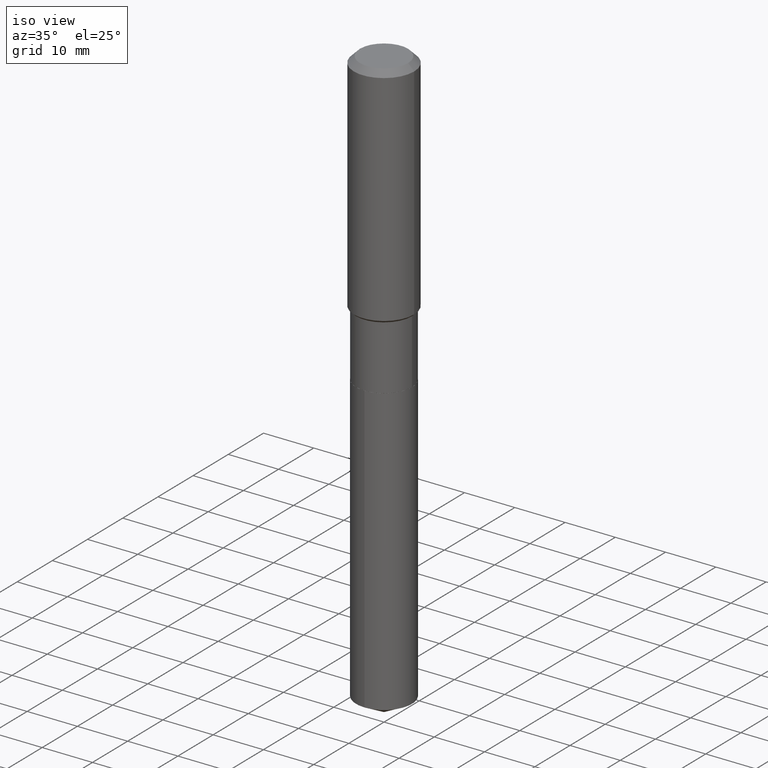
[diagram: clean part render]
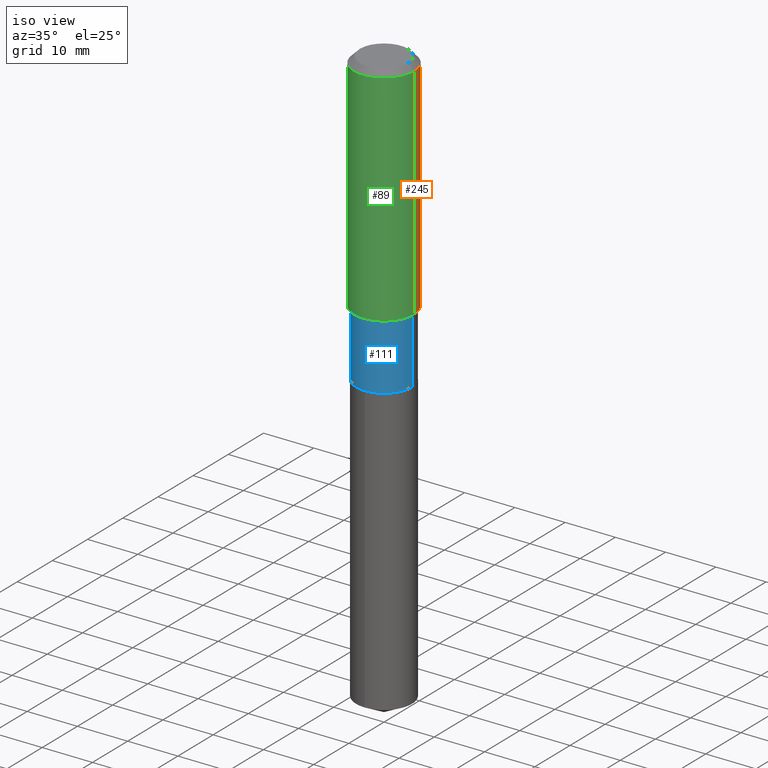
[diagram: same view with three faces highlighted in distinct colors, each labeled with its STEP entity id]
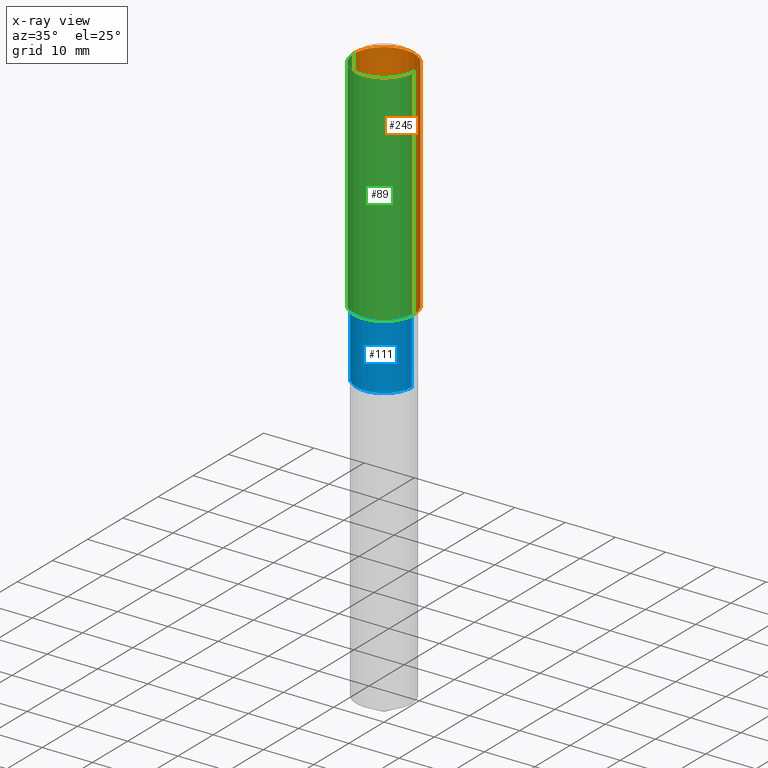
[diagram: x-ray of the same camera — body ghosted, the three highlighted faces saturated]
A machine part, iso view with three faces highlighted in distinct colors.
The next image is the same camera in x-ray (body ghosted, the three faces saturated) — at least one of them is partly hidden behind the body in this view.
Their STEP definitions:

[orange] entity #245 — the highlighted cylindrical surface (partial cylindrical patch) has radius 5.9995 mm, axis along (-0, 0, 1).
#19 = CARTESIAN_POINT ( 'NONE',  ( 1.155239464041865506E-30, -1.649375784469511859E-16, -0.04724000000000028177 ) ) ;
#28 = DIRECTION ( 'NONE',  ( -2.445468806185136877E-29, 3.491481338843145188E-15, 1.000000000000000000 ) ) ;
#73 = CARTESIAN_POINT ( 'NONE',  ( -0.2361999999999999933, -1.489065184292978124E-15, -0.04724000000000028177 ) ) ;
#74 = EDGE_LOOP ( 'NONE', ( #184, #84, #218, #225 ) ) ;
#78 = CARTESIAN_POINT ( 'NONE',  ( 0.2361999999999999933, -1.814313362916447440E-15, -0.04724000000000028177 ) ) ;
#84 = ORIENTED_EDGE ( 'NONE', *, *, #311, .T. ) ;
#101 = VERTEX_POINT ( 'NONE', #276 ) ;
#130 = CARTESIAN_POINT ( 'NONE',  ( 0.000000000000000000, 0.000000000000000000, 0.000000000000000000 ) ) ;
#133 = LINE ( 'NONE', #444, #193 ) ;
#143 = VERTEX_POINT ( 'NONE', #249 ) ;
#169 = AXIS2_PLACEMENT_3D ( 'NONE', #19, #223, #326 ) ;
#170 = DIRECTION ( 'NONE',  ( -2.445468806185136597E-29, 3.491481338843145583E-15, 1.000000000000000000 ) ) ;
#180 = CARTESIAN_POINT ( 'NONE',  ( -0.2362000000000001043, 1.678301941865357380E-15, -1.161852468318209317E-29 ) ) ;
#184 = ORIENTED_EDGE ( 'NONE', *, *, #259, .T. ) ;
#193 = VECTOR ( 'NONE', #397, 39.37007874015748143 ) ;
#213 = EDGE_CURVE ( 'NONE', #143, #470, #133, .T. ) ;
#218 = ORIENTED_EDGE ( 'NONE', *, *, #272, .F. ) ;
#223 = DIRECTION ( 'NONE',  ( -2.445468806185136597E-29, 3.491481338843145583E-15, 1.000000000000000000 ) ) ;
#225 = ORIENTED_EDGE ( 'NONE', *, *, #213, .F. ) ;
#234 = AXIS2_PLACEMENT_3D ( 'NONE', #278, #170, #439 ) ;
#244 = CYLINDRICAL_SURFACE ( 'NONE', #317, 0.2362000000000001043 ) ;
#245 = ADVANCED_FACE ( 'NONE', ( #361 ), #244, .T. ) ;
#249 = CARTESIAN_POINT ( 'NONE',  ( 0.2362000000000002153, -7.819172458339218196E-15, -1.767099999999999227 ) ) ;
#259 = EDGE_CURVE ( 'NONE', #143, #101, #450, .T. ) ;
#272 = EDGE_CURVE ( 'NONE', #470, #447, #305, .T. ) ;
#276 = CARTESIAN_POINT ( 'NONE',  ( -0.2362000000000002153, -4.491494732004361332E-15, -1.767099999999999227 ) ) ;
#278 = CARTESIAN_POINT ( 'NONE',  ( 4.321387927409752990E-29, -6.169796673869720093E-15, -1.767099999999999227 ) ) ;
#284 = DIRECTION ( 'NONE',  ( -2.445468806185136597E-29, 3.491481338843145583E-15, 1.000000000000000000 ) ) ;
#305 = CIRCLE ( 'NONE', #169, 0.2361999999999999933 ) ;
#311 = EDGE_CURVE ( 'NONE', #101, #447, #418, .T. ) ;
#317 = AXIS2_PLACEMENT_3D ( 'NONE', #130, #284, #399 ) ;
#326 = DIRECTION ( 'NONE',  ( 1.000000000000000000, -6.982962677686266711E-15, 0.000000000000000000 ) ) ;
#343 = VECTOR ( 'NONE', #28, 39.37007874015748143 ) ;
#361 = FACE_OUTER_BOUND ( 'NONE', #74, .T. ) ;
#397 = DIRECTION ( 'NONE',  ( -2.445468806185136877E-29, 3.491481338843145188E-15, 1.000000000000000000 ) ) ;
#399 = DIRECTION ( 'NONE',  ( 1.000000000000000000, -6.982962677686266711E-15, 4.876176775795935793E-29 ) ) ;
#418 = LINE ( 'NONE', #180, #343 ) ;
#439 = DIRECTION ( 'NONE',  ( 1.000000000000000000, -6.982962677686266711E-15, 0.000000000000000000 ) ) ;
#444 = CARTESIAN_POINT ( 'NONE',  ( 0.2362000000000001043, -1.649375784469496920E-15, 1.151752954443000508E-29 ) ) ;
#447 = VERTEX_POINT ( 'NONE', #73 ) ;
#450 = CIRCLE ( 'NONE', #234, 0.2362000000000002153 ) ;
#470 = VERTEX_POINT ( 'NONE', #78 ) ;

[blue] entity #111 — the highlighted cylindrical surface (edge-blend (fillet) strip) has radius 5.5499 mm, axis along (-0, 0, 1).
#26 = CARTESIAN_POINT ( 'NONE',  ( -0.2184999999999999443, -5.555596406047996630E-15, -1.784799999999999498 ) ) ;
#27 = ORIENTED_EDGE ( 'NONE', *, *, #385, .T. ) ;
#45 = DIRECTION ( 'NONE',  ( -2.445468806185136877E-29, 3.491481338843145188E-15, 1.000000000000000000 ) ) ;
#46 = CIRCLE ( 'NONE', #86, 0.2184999999999999443 ) ;
#47 = CYLINDRICAL_SURFACE ( 'NONE', #160, 0.2184999999999999720 ) ;
#51 = EDGE_CURVE ( 'NONE', #256, #297, #270, .T. ) ;
#63 = EDGE_LOOP ( 'NONE', ( #99, #27, #320, #141 ) ) ;
#69 = VERTEX_POINT ( 'NONE', #382 ) ;
#72 = VERTEX_POINT ( 'NONE', #85 ) ;
#85 = CARTESIAN_POINT ( 'NONE',  ( 0.2184999999999999443, -7.757373238641693025E-15, -1.784799999999999498 ) ) ;
#86 = AXIS2_PLACEMENT_3D ( 'NONE', #309, #426, #124 ) ;
#96 = VECTOR ( 'NONE', #45, 39.37007874015748143 ) ;
#99 = ORIENTED_EDGE ( 'NONE', *, *, #51, .F. ) ;
#105 = EDGE_CURVE ( 'NONE', #297, #72, #46, .T. ) ;
#111 = ADVANCED_FACE ( 'NONE', ( #391 ), #47, .T. ) ;
#113 = DIRECTION ( 'NONE',  ( 1.000000000000000000, -6.982962677686264344E-15, 0.000000000000000000 ) ) ;
#115 = VECTOR ( 'NONE', #183, 39.37007874015748143 ) ;
#120 = DIRECTION ( 'NONE',  ( 1.000000000000000000, -6.982962677686266711E-15, 4.876176775795935793E-29 ) ) ;
#124 = DIRECTION ( 'NONE',  ( 1.000000000000000000, -6.982962677686265922E-15, 0.000000000000000000 ) ) ;
#141 = ORIENTED_EDGE ( 'NONE', *, *, #105, .F. ) ;
#160 = AXIS2_PLACEMENT_3D ( 'NONE', #202, #464, #120 ) ;
#174 = CARTESIAN_POINT ( 'NONE',  ( 5.592542612864786810E-29, -7.984668673800386201E-15, -2.286899999999999267 ) ) ;
#178 = DIRECTION ( 'NONE',  ( -2.445468806185136597E-29, 3.491481338843145583E-15, 1.000000000000000000 ) ) ;
#183 = DIRECTION ( 'NONE',  ( -2.445468806185136877E-29, 3.491481338843145188E-15, 1.000000000000000000 ) ) ;
#187 = LINE ( 'NONE', #334, #115 ) ;
#202 = CARTESIAN_POINT ( 'NONE',  ( 0.000000000000000000, 0.000000000000000000, 0.000000000000000000 ) ) ;
#256 = VERTEX_POINT ( 'NONE', #359 ) ;
#269 = EDGE_CURVE ( 'NONE', #69, #72, #187, .T. ) ;
#270 = LINE ( 'NONE', #390, #96 ) ;
#280 = AXIS2_PLACEMENT_3D ( 'NONE', #174, #178, #113 ) ;
#297 = VERTEX_POINT ( 'NONE', #26 ) ;
#309 = CARTESIAN_POINT ( 'NONE',  ( 4.364672725279230202E-29, -6.231595893567244475E-15, -1.784799999999999498 ) ) ;
#320 = ORIENTED_EDGE ( 'NONE', *, *, #269, .T. ) ;
#334 = CARTESIAN_POINT ( 'NONE',  ( 0.2184999999999999720, -1.525777345074449142E-15, 1.065444625511411819E-29 ) ) ;
#359 = CARTESIAN_POINT ( 'NONE',  ( -0.2184999999999999998, -5.555596406047996630E-15, -2.286899999999999267 ) ) ;
#382 = CARTESIAN_POINT ( 'NONE',  ( 0.2184999999999999998, -9.510446018874835540E-15, -2.286899999999999267 ) ) ;
#385 = EDGE_CURVE ( 'NONE', #256, #69, #435, .T. ) ;
#390 = CARTESIAN_POINT ( 'NONE',  ( -0.2184999999999999720, 1.552535877635818707E-15, -1.074787317220696878E-29 ) ) ;
#391 = FACE_OUTER_BOUND ( 'NONE', #63, .T. ) ;
#426 = DIRECTION ( 'NONE',  ( -2.445468806185136597E-29, 3.491481338843145583E-15, 1.000000000000000000 ) ) ;
#435 = CIRCLE ( 'NONE', #280, 0.2184999999999999998 ) ;
#464 = DIRECTION ( 'NONE',  ( -2.445468806185136597E-29, 3.491481338843145583E-15, 1.000000000000000000 ) ) ;

[green] entity #89 — the highlighted cylindrical surface (partial cylindrical patch) has radius 5.9995 mm, axis along (-0, 0, 1).
#5 = ORIENTED_EDGE ( 'NONE', *, *, #213, .T. ) ;
#9 = DIRECTION ( 'NONE',  ( -2.445468806185136597E-29, 3.491481338843145583E-15, 1.000000000000000000 ) ) ;
#10 = FACE_OUTER_BOUND ( 'NONE', #139, .T. ) ;
#28 = DIRECTION ( 'NONE',  ( -2.445468806185136877E-29, 3.491481338843145188E-15, 1.000000000000000000 ) ) ;
#70 = CIRCLE ( 'NONE', #353, 0.2362000000000002153 ) ;
#73 = CARTESIAN_POINT ( 'NONE',  ( -0.2361999999999999933, -1.489065184292978124E-15, -0.04724000000000028177 ) ) ;
#76 = CARTESIAN_POINT ( 'NONE',  ( 0.000000000000000000, 0.000000000000000000, 0.000000000000000000 ) ) ;
#78 = CARTESIAN_POINT ( 'NONE',  ( 0.2361999999999999933, -1.814313362916447440E-15, -0.04724000000000028177 ) ) ;
#79 = CIRCLE ( 'NONE', #227, 0.2361999999999999933 ) ;
#89 = ADVANCED_FACE ( 'NONE', ( #10 ), #423, .T. ) ;
#101 = VERTEX_POINT ( 'NONE', #276 ) ;
#122 = DIRECTION ( 'NONE',  ( -2.445468806185136597E-29, 3.491481338843145583E-15, 1.000000000000000000 ) ) ;
#133 = LINE ( 'NONE', #444, #193 ) ;
#139 = EDGE_LOOP ( 'NONE', ( #195, #376, #5, #346 ) ) ;
#140 = DIRECTION ( 'NONE',  ( -2.445468806185136597E-29, 3.491481338843145583E-15, 1.000000000000000000 ) ) ;
#143 = VERTEX_POINT ( 'NONE', #249 ) ;
#163 = DIRECTION ( 'NONE',  ( 1.000000000000000000, -6.982962677686266711E-15, 4.876176775795935793E-29 ) ) ;
#180 = CARTESIAN_POINT ( 'NONE',  ( -0.2362000000000001043, 1.678301941865357380E-15, -1.161852468318209317E-29 ) ) ;
#193 = VECTOR ( 'NONE', #397, 39.37007874015748143 ) ;
#194 = CARTESIAN_POINT ( 'NONE',  ( 1.155239464041865506E-30, -1.649375784469511859E-16, -0.04724000000000028177 ) ) ;
#195 = ORIENTED_EDGE ( 'NONE', *, *, #311, .F. ) ;
#213 = EDGE_CURVE ( 'NONE', #143, #470, #133, .T. ) ;
#227 = AXIS2_PLACEMENT_3D ( 'NONE', #194, #122, #458 ) ;
#249 = CARTESIAN_POINT ( 'NONE',  ( 0.2362000000000002153, -7.819172458339218196E-15, -1.767099999999999227 ) ) ;
#276 = CARTESIAN_POINT ( 'NONE',  ( -0.2362000000000002153, -4.491494732004361332E-15, -1.767099999999999227 ) ) ;
#311 = EDGE_CURVE ( 'NONE', #101, #447, #418, .T. ) ;
#343 = VECTOR ( 'NONE', #28, 39.37007874015748143 ) ;
#346 = ORIENTED_EDGE ( 'NONE', *, *, #469, .F. ) ;
#353 = AXIS2_PLACEMENT_3D ( 'NONE', #485, #140, #414 ) ;
#364 = AXIS2_PLACEMENT_3D ( 'NONE', #76, #9, #163 ) ;
#376 = ORIENTED_EDGE ( 'NONE', *, *, #431, .T. ) ;
#397 = DIRECTION ( 'NONE',  ( -2.445468806185136877E-29, 3.491481338843145188E-15, 1.000000000000000000 ) ) ;
#414 = DIRECTION ( 'NONE',  ( 1.000000000000000000, -6.982962677686266711E-15, 0.000000000000000000 ) ) ;
#418 = LINE ( 'NONE', #180, #343 ) ;
#423 = CYLINDRICAL_SURFACE ( 'NONE', #364, 0.2362000000000001043 ) ;
#431 = EDGE_CURVE ( 'NONE', #101, #143, #70, .T. ) ;
#444 = CARTESIAN_POINT ( 'NONE',  ( 0.2362000000000001043, -1.649375784469496920E-15, 1.151752954443000508E-29 ) ) ;
#447 = VERTEX_POINT ( 'NONE', #73 ) ;
#458 = DIRECTION ( 'NONE',  ( 1.000000000000000000, -6.982962677686266711E-15, 0.000000000000000000 ) ) ;
#469 = EDGE_CURVE ( 'NONE', #447, #470, #79, .T. ) ;
#470 = VERTEX_POINT ( 'NONE', #78 ) ;
#485 = CARTESIAN_POINT ( 'NONE',  ( 4.321387927409752990E-29, -6.169796673869720093E-15, -1.767099999999999227 ) ) ;